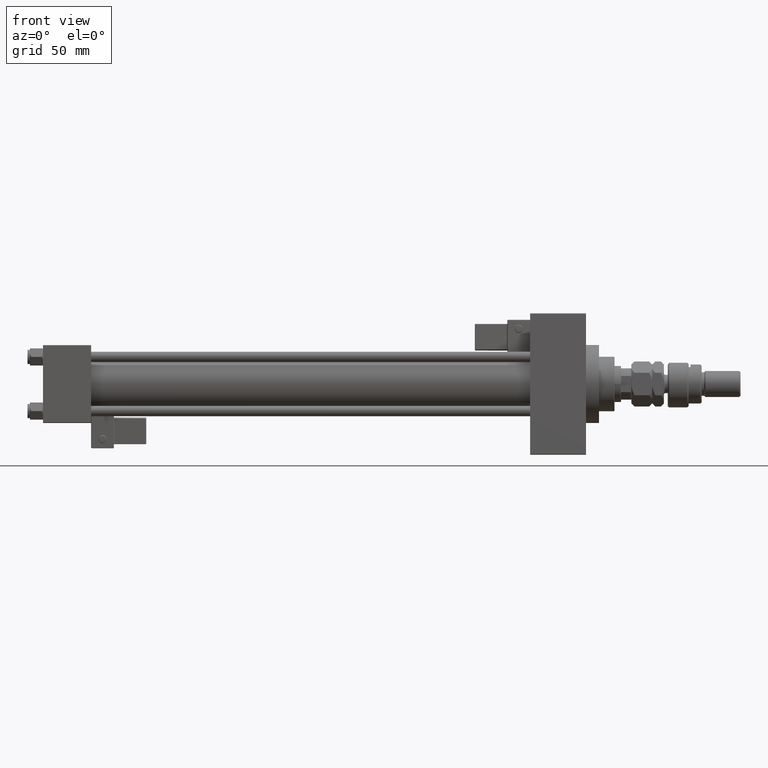
[diagram: clean part render]
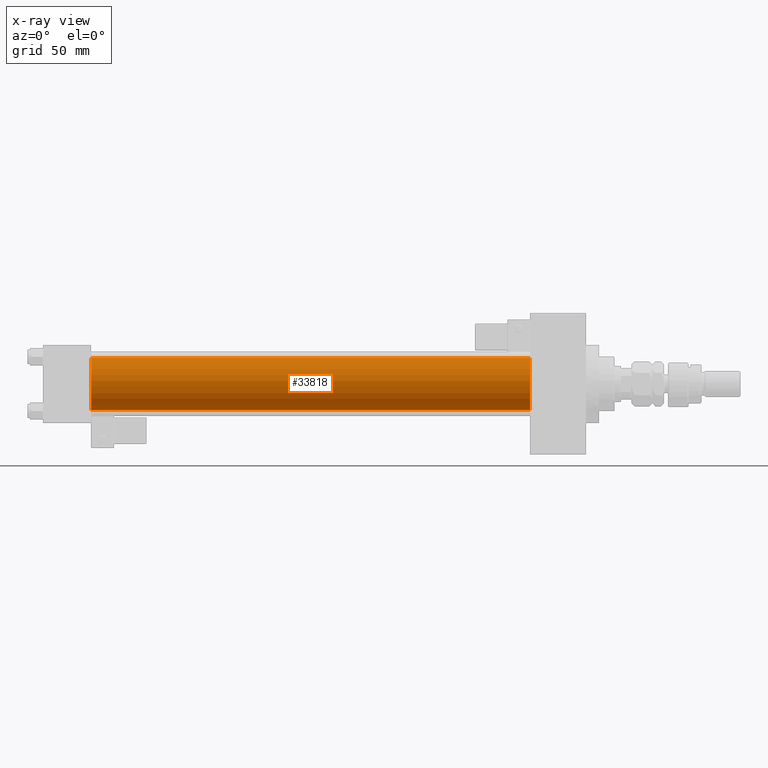
[diagram: x-ray — body ghosted, one internal face saturated and labeled with its STEP entity id]
A machine part, front view, then the same camera in x-ray: the body is ghosted and one INTERNAL B-rep face — a face not visible from any outside direction — is saturated and labeled: STEP entity #33818.
In plain terms, the highlighted cylindrical surface (edge-blend (fillet) strip) has radius 20 mm, axis along (-1, -0, -0).
Its self-contained STEP definition (entity closure, byte-faithful):
#423 = EDGE_CURVE ( 'NONE', #16615, #19438, #20847, .T. ) ;
#663 = DIRECTION ( 'NONE',  ( 1.000000000000000000, 0.000000000000000000, 0.000000000000000000 ) ) ;
#1477 = CARTESIAN_POINT ( 'NONE',  ( 375.0000000000000000, -1.527916156705042519E-16, -20.00000000000000000 ) ) ;
#2452 = ORIENTED_EDGE ( 'NONE', *, *, #30109, .F. ) ;
#2862 = LINE ( 'NONE', #23566, #13949 ) ;
#5507 = ORIENTED_EDGE ( 'NONE', *, *, #18744, .T. ) ;
#6331 = CYLINDRICAL_SURFACE ( 'NONE', #11028, 20.00000000000000000 ) ;
#7672 = DIRECTION ( 'NONE',  ( -1.000000000000000000, -0.000000000000000000, -0.000000000000000000 ) ) ;
#9448 = DIRECTION ( 'NONE',  ( 0.000000000000000000, 0.000000000000000000, -1.000000000000000000 ) ) ;
#11028 = AXIS2_PLACEMENT_3D ( 'NONE', #22505, #38721, #50964 ) ;
#13086 = CARTESIAN_POINT ( 'NONE',  ( 37.00000000000000000, -1.527916156705042519E-16, -20.00000000000000000 ) ) ;
#13185 = CARTESIAN_POINT ( 'NONE',  ( 375.0000000000000000, -2.602085213965210642E-15, 20.00000000000000000 ) ) ;
#13243 = CIRCLE ( 'NONE', #30225, 20.00000000000000000 ) ;
#13949 = VECTOR ( 'NONE', #7672, 1000.000000000000000 ) ;
#16615 = VERTEX_POINT ( 'NONE', #13185 ) ;
#18744 = EDGE_CURVE ( 'NONE', #35808, #31143, #2862, .T. ) ;
#19438 = VERTEX_POINT ( 'NONE', #22395 ) ;
#20847 = LINE ( 'NONE', #37078, #35378 ) ;
#21059 = CIRCLE ( 'NONE', #43108, 20.00000000000000000 ) ;
#22395 = CARTESIAN_POINT ( 'NONE',  ( 37.00000000000000000, -2.602085213965210642E-15, 20.00000000000000000 ) ) ;
#22505 = CARTESIAN_POINT ( 'NONE',  ( 375.0000000000000000, -2.602085213965210642E-15, 0.000000000000000000 ) ) ;
#23566 = CARTESIAN_POINT ( 'NONE',  ( 375.0000000000000000, -1.527916156705042519E-16, -20.00000000000000000 ) ) ;
#27025 = DIRECTION ( 'NONE',  ( 1.000000000000000000, 0.000000000000000000, 0.000000000000000000 ) ) ;
#27396 = EDGE_LOOP ( 'NONE', ( #35085, #5507, #2452, #48610 ) ) ;
#30109 = EDGE_CURVE ( 'NONE', #19438, #31143, #21059, .T. ) ;
#30225 = AXIS2_PLACEMENT_3D ( 'NONE', #46103, #663, #9448 ) ;
#31143 = VERTEX_POINT ( 'NONE', #13086 ) ;
#31802 = CARTESIAN_POINT ( 'NONE',  ( 37.00000000000000000, -2.602085213965210642E-15, 0.000000000000000000 ) ) ;
#33818 = ADVANCED_FACE ( 'NONE', ( #42718 ), #6331, .F. ) ;
#35085 = ORIENTED_EDGE ( 'NONE', *, *, #38275, .T. ) ;
#35378 = VECTOR ( 'NONE', #48273, 1000.000000000000000 ) ;
#35532 = DIRECTION ( 'NONE',  ( 0.000000000000000000, 0.000000000000000000, -1.000000000000000000 ) ) ;
#35808 = VERTEX_POINT ( 'NONE', #1477 ) ;
#37078 = CARTESIAN_POINT ( 'NONE',  ( 375.0000000000000000, -2.602085213965210642E-15, 20.00000000000000000 ) ) ;
#38275 = EDGE_CURVE ( 'NONE', #16615, #35808, #13243, .T. ) ;
#38721 = DIRECTION ( 'NONE',  ( -1.000000000000000000, -0.000000000000000000, -0.000000000000000000 ) ) ;
#42718 = FACE_OUTER_BOUND ( 'NONE', #27396, .T. ) ;
#43108 = AXIS2_PLACEMENT_3D ( 'NONE', #31802, #27025, #35532 ) ;
#46103 = CARTESIAN_POINT ( 'NONE',  ( 375.0000000000000000, -2.602085213965210642E-15, 0.000000000000000000 ) ) ;
#48273 = DIRECTION ( 'NONE',  ( -1.000000000000000000, -0.000000000000000000, -0.000000000000000000 ) ) ;
#48610 = ORIENTED_EDGE ( 'NONE', *, *, #423, .F. ) ;
#50964 = DIRECTION ( 'NONE',  ( 0.000000000000000000, 0.000000000000000000, 1.000000000000000000 ) ) ;